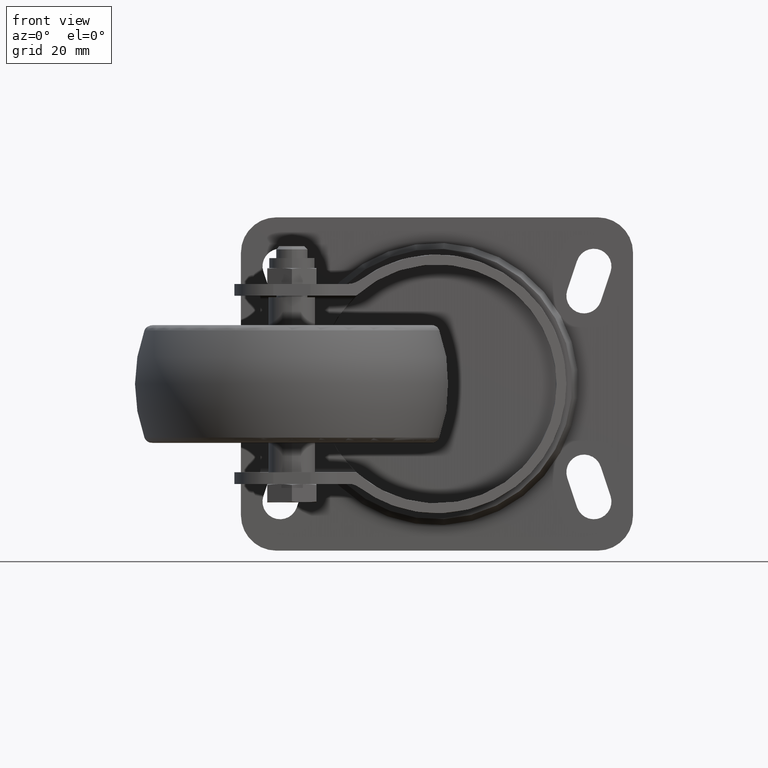
[diagram: clean part render]
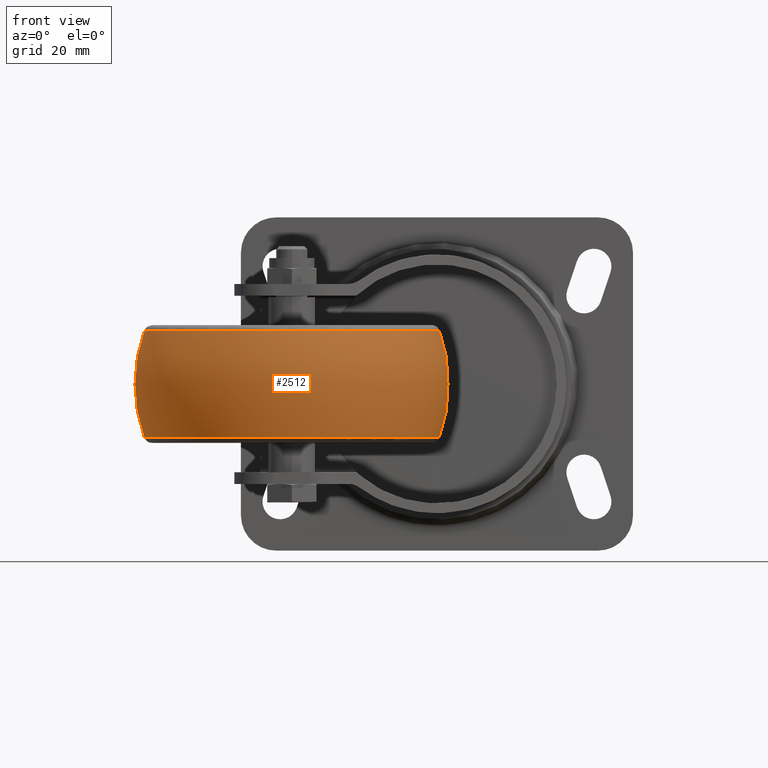
[diagram: same view with one face highlighted and labeled with its STEP entity id]
A machine part, front view. The second image highlights one B-rep face of the part: STEP entity #2512.
In plain terms, the highlighted spherical surface has radius 40 mm.
Its self-contained STEP definition (entity closure, byte-faithful):
#14=SPHERICAL_SURFACE('',#2839,40.);
#318=FACE_OUTER_BOUND('',#486,.T.);
#486=EDGE_LOOP('',(#2143,#2144,#2145,#2146,#2147,#2148));
#655=CIRCLE('',#2837,37.5864654133835);
#656=CIRCLE('',#2838,37.5864654133835);
#657=CIRCLE('',#2840,37.5864654133834);
#658=CIRCLE('',#2841,37.5864654133834);
#659=CIRCLE('',#2842,40.);
#1133=VERTEX_POINT('',#4596);
#1134=VERTEX_POINT('',#4598);
#1135=VERTEX_POINT('',#4602);
#1136=VERTEX_POINT('',#4603);
#1473=EDGE_CURVE('',#1133,#1134,#655,.T.);
#1474=EDGE_CURVE('',#1134,#1133,#656,.T.);
#1475=EDGE_CURVE('',#1135,#1136,#657,.T.);
#1476=EDGE_CURVE('',#1136,#1135,#658,.T.);
#1477=EDGE_CURVE('',#1135,#1134,#659,.T.);
#2143=ORIENTED_EDGE('',*,*,#1475,.T.);
#2144=ORIENTED_EDGE('',*,*,#1476,.T.);
#2145=ORIENTED_EDGE('',*,*,#1477,.T.);
#2146=ORIENTED_EDGE('',*,*,#1473,.F.);
#2147=ORIENTED_EDGE('',*,*,#1474,.F.);
#2148=ORIENTED_EDGE('',*,*,#1477,.F.);
#2512=ADVANCED_FACE('',(#318),#14,.T.);
#2837=AXIS2_PLACEMENT_3D('',#4599,#3566,#3567);
#2838=AXIS2_PLACEMENT_3D('',#4600,#3568,#3569);
#2839=AXIS2_PLACEMENT_3D('',#4601,#3570,#3571);
#2840=AXIS2_PLACEMENT_3D('',#4604,#3572,#3573);
#2841=AXIS2_PLACEMENT_3D('',#4605,#3574,#3575);
#2842=AXIS2_PLACEMENT_3D('',#4606,#3576,#3577);
#3566=DIRECTION('center_axis',(0.,0.,-1.));
#3567=DIRECTION('ref_axis',(1.,0.,0.));
#3568=DIRECTION('center_axis',(0.,0.,-1.));
#3569=DIRECTION('ref_axis',(1.,0.,0.));
#3570=DIRECTION('center_axis',(6.12323399573677E-17,0.,1.));
#3571=DIRECTION('ref_axis',(1.,0.,0.));
#3572=DIRECTION('center_axis',(0.,0.,-1.));
#3573=DIRECTION('ref_axis',(1.,0.,0.));
#3574=DIRECTION('center_axis',(0.,0.,-1.));
#3575=DIRECTION('ref_axis',(1.,0.,0.));
#3576=DIRECTION('center_axis',(1.22464679914735E-16,-1.,0.));
#3577=DIRECTION('ref_axis',(-1.,-1.22464679914735E-16,0.));
#4596=CARTESIAN_POINT('',(37.5864654133835,-9.20572487259088E-15,-13.6842105263158));
#4598=CARTESIAN_POINT('',(-37.5864654133835,-4.60301445597628E-15,-13.6842105263158));
#4599=CARTESIAN_POINT('Origin',(0.,0.,-13.6842105263158));
#4600=CARTESIAN_POINT('Origin',(0.,0.,-13.6842105263158));
#4601=CARTESIAN_POINT('Origin',(0.,0.,-7.63833440942108E-14));
#4602=CARTESIAN_POINT('',(-37.5864654133834,-4.60286243629543E-15,13.6842105263158));
#4603=CARTESIAN_POINT('',(37.5864654133834,-4.60301445597627E-15,13.6842105263158));
#4604=CARTESIAN_POINT('Origin',(0.,0.,13.6842105263158));
#4605=CARTESIAN_POINT('Origin',(0.,0.,13.6842105263158));
#4606=CARTESIAN_POINT('Origin',(0.,0.,-7.63833440942108E-14));